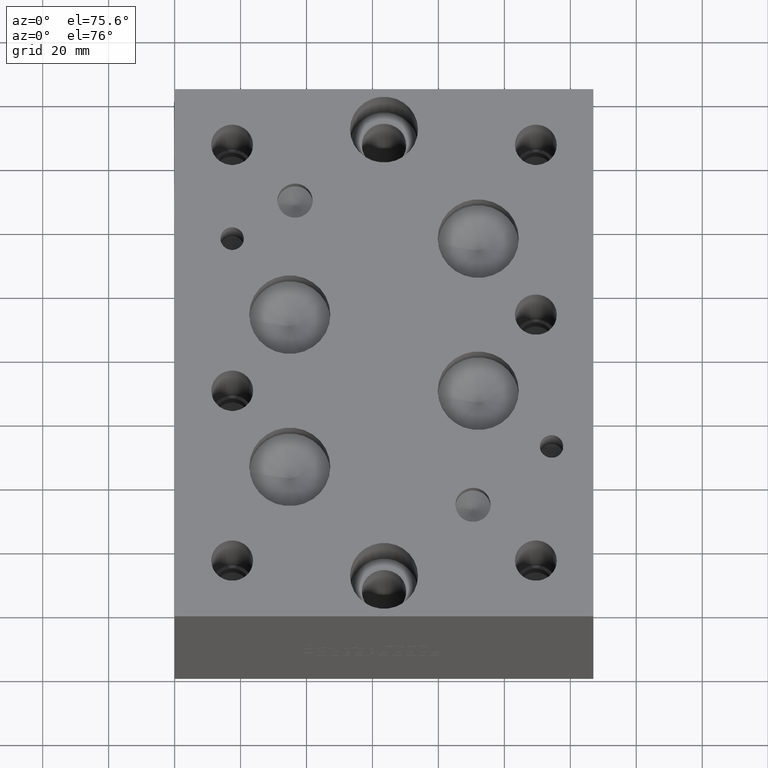
[diagram: clean part render]
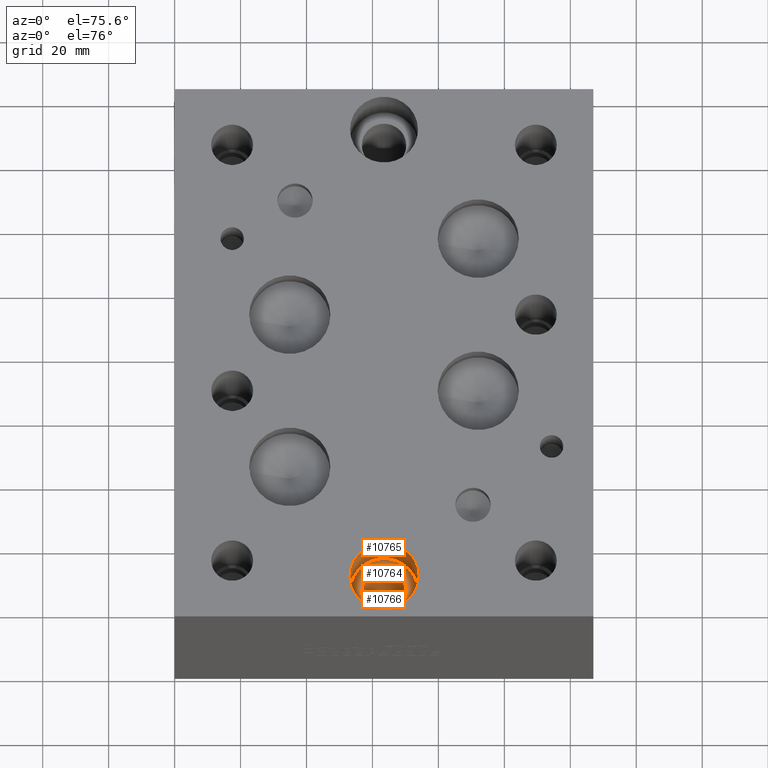
[diagram: same view with one multi-face feature highlighted, each face labeled with its STEP entity id]
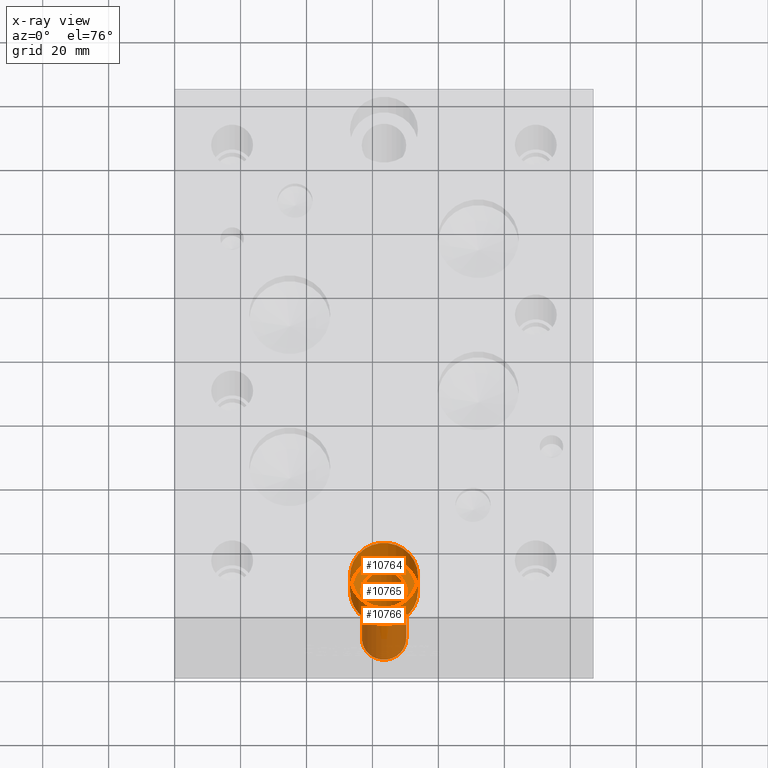
[diagram: x-ray of the same camera — body ghosted, the whole feature saturated]
A machine part, auxiliary view. The highlighted faces form ONE feature: a stepped (counterbored) hole: 2 coaxial cylindrical walls of radii 6.7437 -> 10.3124 mm joined by 1 annular planar shoulder face(s). The faces share edges in the B-rep.
The next image is the same camera in x-ray: the body ghosted and the whole hole feature saturated, so the bore chain is visible through the body.
Their STEP definitions:
[1] entity #10765 (Cylinder):
#48=CYLINDRICAL_SURFACE('',#11292,10.3124);
#227=CIRCLE('',#11289,10.3124);
#228=CIRCLE('',#11290,10.3124);
#230=CIRCLE('',#11293,10.3124);
#231=CIRCLE('',#11294,10.3124);
#1377=FACE_OUTER_BOUND('',#1986,.T.);
#1986=EDGE_LOOP('',(#9295,#9296,#9297,#9298,#9299,#9300));
#2996=LINE('',#18514,#3975);
#3975=VECTOR('',#13298,10.3124);
#4943=VERTEX_POINT('',#18503);
#4944=VERTEX_POINT('',#18504);
#4946=VERTEX_POINT('',#18510);
#4947=VERTEX_POINT('',#18511);
#6421=EDGE_CURVE('',#4943,#4944,#227,.T.);
#6422=EDGE_CURVE('',#4944,#4943,#228,.T.);
#6424=EDGE_CURVE('',#4946,#4947,#230,.T.);
#6425=EDGE_CURVE('',#4947,#4946,#231,.T.);
#6426=EDGE_CURVE('',#4947,#4944,#2996,.T.);
#9295=ORIENTED_EDGE('',*,*,#6424,.F.);
#9296=ORIENTED_EDGE('',*,*,#6425,.F.);
#9297=ORIENTED_EDGE('',*,*,#6426,.T.);
#9298=ORIENTED_EDGE('',*,*,#6421,.F.);
#9299=ORIENTED_EDGE('',*,*,#6422,.F.);
#9300=ORIENTED_EDGE('',*,*,#6426,.F.);
#10765=ADVANCED_FACE('',(#1377),#48,.F.);
#11289=AXIS2_PLACEMENT_3D('',#18505,#13286,#13287);
#11290=AXIS2_PLACEMENT_3D('',#18506,#13288,#13289);
#11292=AXIS2_PLACEMENT_3D('',#18509,#13292,#13293);
#11293=AXIS2_PLACEMENT_3D('',#18512,#13294,#13295);
#11294=AXIS2_PLACEMENT_3D('',#18513,#13296,#13297);
#13286=DIRECTION('center_axis',(0.,0.,1.));
#13287=DIRECTION('ref_axis',(1.,0.,0.));
#13288=DIRECTION('center_axis',(0.,0.,1.));
#13289=DIRECTION('ref_axis',(1.,0.,0.));
#13292=DIRECTION('center_axis',(0.,0.,1.));
#13293=DIRECTION('ref_axis',(1.,0.,0.));
#13294=DIRECTION('center_axis',(0.,0.,-1.));
#13295=DIRECTION('ref_axis',(1.,0.,0.));
#13296=DIRECTION('center_axis',(0.,0.,-1.));
#13297=DIRECTION('ref_axis',(1.,0.,0.));
#13298=DIRECTION('',(0.,0.,-1.));
#18503=CARTESIAN_POINT('',(73.8124,12.7,57.15));
#18504=CARTESIAN_POINT('',(53.1876,12.7,57.15));
#18505=CARTESIAN_POINT('Origin',(63.5,12.7,57.15));
#18506=CARTESIAN_POINT('Origin',(63.5,12.7,57.15));
#18509=CARTESIAN_POINT('Origin',(63.5,12.7,66.675));
#18510=CARTESIAN_POINT('',(73.8124,12.7,76.2));
#18511=CARTESIAN_POINT('',(53.1876,12.7,76.2));
#18512=CARTESIAN_POINT('Origin',(63.5,12.7,76.2));
#18513=CARTESIAN_POINT('Origin',(63.5,12.7,76.2));
#18514=CARTESIAN_POINT('',(53.1876,12.7,66.675));
[2] entity #10766 (Cylinder):
#49=CYLINDRICAL_SURFACE('',#11295,6.7437);
#143=CIRCLE('',#11151,6.7437);
#229=CIRCLE('',#11291,6.7437);
#1378=FACE_OUTER_BOUND('',#1987,.T.);
#1987=EDGE_LOOP('',(#9301,#9302,#9303,#9304));
#2997=LINE('',#18516,#3976);
#3976=VECTOR('',#13301,6.7437);
#4857=VERTEX_POINT('',#18238);
#4945=VERTEX_POINT('',#18507);
#6296=EDGE_CURVE('',#4857,#4857,#143,.T.);
#6423=EDGE_CURVE('',#4945,#4945,#229,.T.);
#6427=EDGE_CURVE('',#4945,#4857,#2997,.T.);
#9301=ORIENTED_EDGE('',*,*,#6423,.T.);
#9302=ORIENTED_EDGE('',*,*,#6427,.T.);
#9303=ORIENTED_EDGE('',*,*,#6296,.F.);
#9304=ORIENTED_EDGE('',*,*,#6427,.F.);
#10766=ADVANCED_FACE('',(#1378),#49,.F.);
#11151=AXIS2_PLACEMENT_3D('',#18239,#12969,#12970);
#11291=AXIS2_PLACEMENT_3D('',#18508,#13290,#13291);
#11295=AXIS2_PLACEMENT_3D('',#18515,#13299,#13300);
#12969=DIRECTION('center_axis',(0.,0.,1.));
#12970=DIRECTION('ref_axis',(1.,0.,0.));
#13290=DIRECTION('center_axis',(0.,0.,1.));
#13291=DIRECTION('ref_axis',(1.,0.,0.));
#13299=DIRECTION('center_axis',(0.,0.,1.));
#13300=DIRECTION('ref_axis',(1.,0.,0.));
#13301=DIRECTION('',(0.,0.,-1.));
#18238=CARTESIAN_POINT('',(56.7563,12.7,0.));
#18239=CARTESIAN_POINT('Origin',(63.5,12.7,0.));
#18507=CARTESIAN_POINT('',(56.7563,12.7,57.15));
#18508=CARTESIAN_POINT('Origin',(63.5,12.7,57.15));
#18515=CARTESIAN_POINT('Origin',(63.5,12.7,-145.595964796477));
#18516=CARTESIAN_POINT('',(56.7563,12.7,-145.595964796477));
[3] entity #10764 (Plane):
#227=CIRCLE('',#11289,10.3124);
#228=CIRCLE('',#11290,10.3124);
#229=CIRCLE('',#11291,6.7437);
#361=FACE_BOUND('',#1985,.T.);
#1376=FACE_OUTER_BOUND('',#1984,.T.);
#1984=EDGE_LOOP('',(#9292,#9293));
#1985=EDGE_LOOP('',(#9294));
#4943=VERTEX_POINT('',#18503);
#4944=VERTEX_POINT('',#18504);
#4945=VERTEX_POINT('',#18507);
#6421=EDGE_CURVE('',#4943,#4944,#227,.T.);
#6422=EDGE_CURVE('',#4944,#4943,#228,.T.);
#6423=EDGE_CURVE('',#4945,#4945,#229,.T.);
#9292=ORIENTED_EDGE('',*,*,#6421,.T.);
#9293=ORIENTED_EDGE('',*,*,#6422,.T.);
#9294=ORIENTED_EDGE('',*,*,#6423,.F.);
#9825=PLANE('',#11288);
#10764=ADVANCED_FACE('',(#1376,#361),#9825,.T.);
#11288=AXIS2_PLACEMENT_3D('',#18502,#13284,#13285);
#11289=AXIS2_PLACEMENT_3D('',#18505,#13286,#13287);
#11290=AXIS2_PLACEMENT_3D('',#18506,#13288,#13289);
#11291=AXIS2_PLACEMENT_3D('',#18508,#13290,#13291);
#13284=DIRECTION('center_axis',(0.,0.,1.));
#13285=DIRECTION('ref_axis',(1.,0.,0.));
#13286=DIRECTION('center_axis',(0.,0.,1.));
#13287=DIRECTION('ref_axis',(1.,0.,0.));
#13288=DIRECTION('center_axis',(0.,0.,1.));
#13289=DIRECTION('ref_axis',(1.,0.,0.));
#13290=DIRECTION('center_axis',(0.,0.,1.));
#13291=DIRECTION('ref_axis',(1.,0.,0.));
#18502=CARTESIAN_POINT('Origin',(63.5,12.7,57.15));
#18503=CARTESIAN_POINT('',(73.8124,12.7,57.15));
#18504=CARTESIAN_POINT('',(53.1876,12.7,57.15));
#18505=CARTESIAN_POINT('Origin',(63.5,12.7,57.15));
#18506=CARTESIAN_POINT('Origin',(63.5,12.7,57.15));
#18507=CARTESIAN_POINT('',(56.7563,12.7,57.15));
#18508=CARTESIAN_POINT('Origin',(63.5,12.7,57.15));